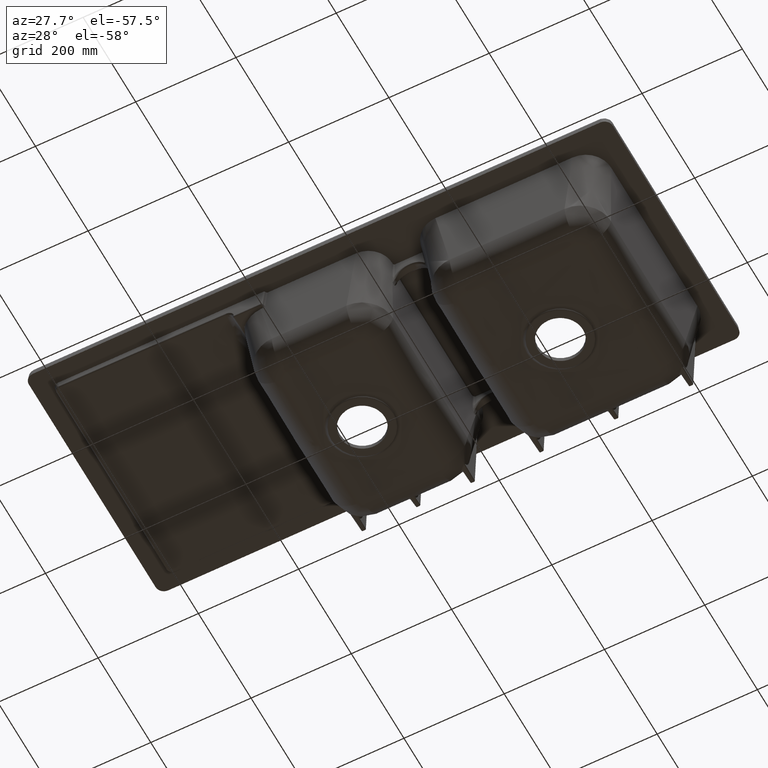
[diagram: clean part render]
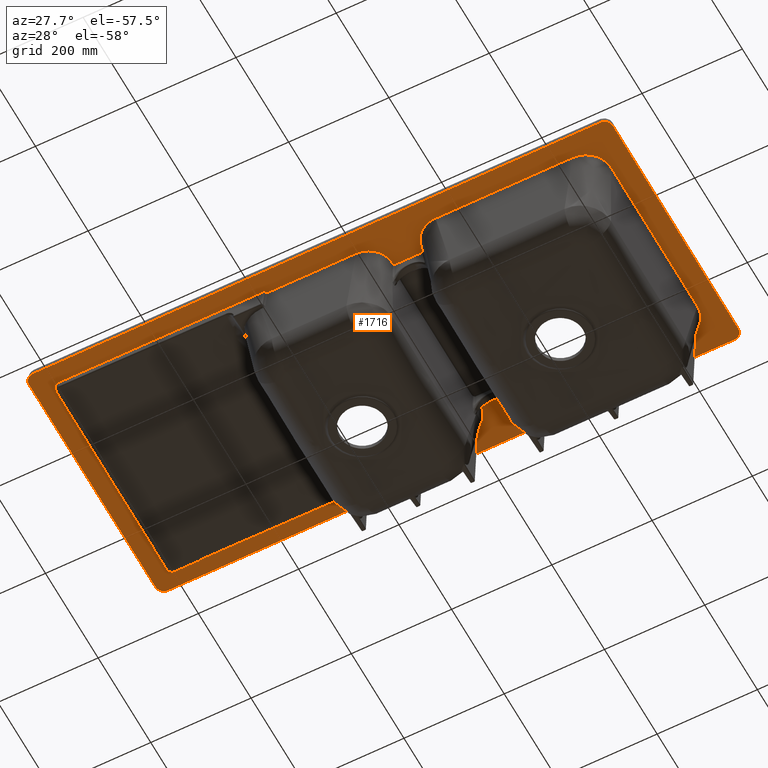
[diagram: same view with one face highlighted and labeled with its STEP entity id]
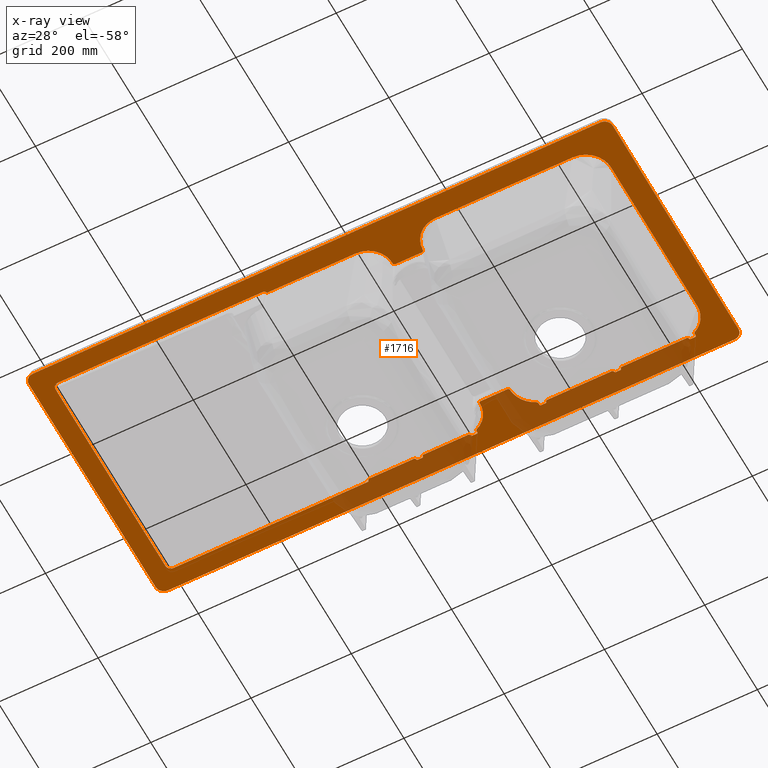
[diagram: x-ray of the same camera — body ghosted, the highlighted face saturated]
A machine part, auxiliary view. The second image highlights one B-rep face of the part: STEP entity #1716.
The next image is the same camera in x-ray: the body ghosted, the highlighted face saturated — about 20% of this face is hidden behind the body in this view.
In plain terms, the highlighted planar face has unit normal (-0, -0, -1).
Its self-contained STEP definition (entity closure, byte-faithful):
#42=FACE_BOUND('',#2870,.T.);
#43=FACE_BOUND('',#2871,.T.);
#53=ELLIPSE('',#8821,2.00135137765347,1.99993859998974);
#54=ELLIPSE('',#8824,2.00135241328788,1.99993860001756);
#55=ELLIPSE('',#8828,2.00135137769312,1.99993860002939);
#56=ELLIPSE('',#8831,2.00135241327104,1.99993860000073);
#57=ELLIPSE('',#8835,2.00135137766263,1.9999385999989);
#58=ELLIPSE('',#8838,2.00135241328802,1.9999386000177);
#59=ELLIPSE('',#8842,3.02277787342306,2.9999079);
#60=ELLIPSE('',#8846,2.00135137765346,1.99993859998972);
#61=ELLIPSE('',#8849,2.00135241327029,1.99993859999998);
#62=ELLIPSE('',#8852,3.01160466872445,2.9999079);
#63=ELLIPSE('',#8855,3.01160326128643,2.9999079);
#64=ELLIPSE('',#8858,2.00135137766313,1.99993859999939);
#65=ELLIPSE('',#8861,2.00135241328848,1.99993860001819);
#66=ELLIPSE('',#8864,3.01160466872445,2.9999079);
#67=ELLIPSE('',#8867,3.01160326128643,2.9999079);
#68=ELLIPSE('',#8870,2.00135137765335,1.99993859998961);
#70=ELLIPSE('',#8875,3.02277787342811,2.9999079);
#71=ELLIPSE('',#8885,3.04795770094347,2.9999079);
#72=ELLIPSE('',#8888,10.1599254830083,9.999693);
#73=ELLIPSE('',#8889,10.1599254830151,9.999693);
#634=LINE('',#41712,#820);
#635=LINE('',#41749,#821);
#637=LINE('',#41755,#823);
#638=LINE('',#41895,#824);
#640=LINE('',#41912,#826);
#642=LINE('',#41929,#828);
#643=LINE('',#42068,#829);
#645=LINE('',#42085,#831);
#646=LINE('',#42111,#832);
#647=LINE('',#42231,#833);
#650=LINE('',#42248,#836);
#651=LINE('',#42338,#837);
#652=LINE('',#42375,#838);
#654=LINE('',#42381,#840);
#658=LINE('',#42391,#844);
#660=LINE('',#42397,#846);
#662=LINE('',#42414,#848);
#664=LINE('',#42431,#850);
#668=LINE('',#42441,#854);
#670=LINE('',#42447,#856);
#672=LINE('',#42506,#858);
#674=LINE('',#42587,#860);
#676=LINE('',#42593,#862);
#677=LINE('',#43375,#864);
#689=LINE('',#44139,#876);
#690=LINE('',#44141,#877);
#691=LINE('',#44145,#878);
#692=LINE('',#44147,#879);
#693=LINE('',#44151,#880);
#694=LINE('',#44153,#881);
#820=VECTOR('',#9786,1.);
#821=VECTOR('',#9793,1.);
#823=VECTOR('',#9801,1.);
#824=VECTOR('',#9804,1.);
#826=VECTOR('',#9812,1.);
#828=VECTOR('',#9820,1.);
#829=VECTOR('',#9823,1.);
#831=VECTOR('',#9831,1.);
#832=VECTOR('',#9838,1.);
#833=VECTOR('',#9841,1.);
#836=VECTOR('',#9850,1.);
#837=VECTOR('',#9853,1.);
#838=VECTOR('',#9860,1.);
#840=VECTOR('',#9868,1.);
#844=VECTOR('',#9878,1.);
#846=VECTOR('',#9886,1.);
#848=VECTOR('',#9894,1.);
#850=VECTOR('',#9902,1.);
#854=VECTOR('',#9912,1.);
#856=VECTOR('',#9920,1.);
#858=VECTOR('',#9930,1.);
#860=VECTOR('',#9934,1.);
#862=VECTOR('',#9942,1.);
#864=VECTOR('',#9946,1.);
#876=VECTOR('',#9978,1.);
#877=VECTOR('',#9979,1.);
#878=VECTOR('',#9982,1.);
#879=VECTOR('',#9983,1.);
#880=VECTOR('',#9986,1.);
#881=VECTOR('',#9987,1.);
#1212=PLANE('',#8890);
#1716=ADVANCED_FACE('',(#42,#43),#1212,.T.);
#2870=EDGE_LOOP('',(#5246,#5247,#5248,#5249,#5250,#5251,#5252,#5253,#5254,
#5255,#5256,#5257,#5258,#5259,#5260,#5261,#5262,#5263,#5264,#5265,#5266,
#5267,#5268,#5269,#5270,#5271,#5272,#5273,#5274,#5275,#5276,#5277,#5278,
#5279,#5280,#5281,#5282,#5283,#5284,#5285,#5286,#5287,#5288,#5289,#5290,
#5291,#5292,#5293,#5294,#5295,#5296,#5297,#5298,#5299,#5300,#5301,#5302,
#5303,#5304,#5305,#5306,#5307,#5308,#5309,#5310,#5311,#5312,#5313,#5314,
#5315,#5316,#5317,#5318));
#2871=EDGE_LOOP('',(#5319,#5320,#5321,#5322,#5323,#5324,#5325,#5326,#5327,
#5328));
#5246=ORIENTED_EDGE('',*,*,#7415,.T.);
#5247=ORIENTED_EDGE('',*,*,#7417,.T.);
#5248=ORIENTED_EDGE('',*,*,#7419,.T.);
#5249=ORIENTED_EDGE('',*,*,#7421,.T.);
#5250=ORIENTED_EDGE('',*,*,#7423,.T.);
#5251=ORIENTED_EDGE('',*,*,#7425,.T.);
#5252=ORIENTED_EDGE('',*,*,#7426,.T.);
#5253=ORIENTED_EDGE('',*,*,#7429,.T.);
#5254=ORIENTED_EDGE('',*,*,#7430,.T.);
#5255=ORIENTED_EDGE('',*,*,#7433,.T.);
#5256=ORIENTED_EDGE('',*,*,#7435,.T.);
#5257=ORIENTED_EDGE('',*,*,#7437,.T.);
#5258=ORIENTED_EDGE('',*,*,#7438,.T.);
#5259=ORIENTED_EDGE('',*,*,#7441,.T.);
#5260=ORIENTED_EDGE('',*,*,#7442,.T.);
#5261=ORIENTED_EDGE('',*,*,#7445,.T.);
#5262=ORIENTED_EDGE('',*,*,#7447,.T.);
#5263=ORIENTED_EDGE('',*,*,#7448,.T.);
#5264=ORIENTED_EDGE('',*,*,#7451,.T.);
#5265=ORIENTED_EDGE('',*,*,#7452,.T.);
#5266=ORIENTED_EDGE('',*,*,#7455,.T.);
#5267=ORIENTED_EDGE('',*,*,#7456,.T.);
#5268=ORIENTED_EDGE('',*,*,#7459,.T.);
#5269=ORIENTED_EDGE('',*,*,#7461,.T.);
#5270=ORIENTED_EDGE('',*,*,#7462,.T.);
#5271=ORIENTED_EDGE('',*,*,#7465,.T.);
#5272=ORIENTED_EDGE('',*,*,#7466,.T.);
#5273=ORIENTED_EDGE('',*,*,#7469,.T.);
#5274=ORIENTED_EDGE('',*,*,#7470,.T.);
#5275=ORIENTED_EDGE('',*,*,#7473,.T.);
#5276=ORIENTED_EDGE('',*,*,#7474,.T.);
#5277=ORIENTED_EDGE('',*,*,#7477,.T.);
#5278=ORIENTED_EDGE('',*,*,#7478,.T.);
#5279=ORIENTED_EDGE('',*,*,#7481,.T.);
#5280=ORIENTED_EDGE('',*,*,#7482,.T.);
#5281=ORIENTED_EDGE('',*,*,#7484,.T.);
#5282=ORIENTED_EDGE('',*,*,#7487,.T.);
#5283=ORIENTED_EDGE('',*,*,#7489,.T.);
#5284=ORIENTED_EDGE('',*,*,#7491,.T.);
#5285=ORIENTED_EDGE('',*,*,#7492,.T.);
#5286=ORIENTED_EDGE('',*,*,#7495,.T.);
#5287=ORIENTED_EDGE('',*,*,#7497,.T.);
#5288=ORIENTED_EDGE('',*,*,#7499,.T.);
#5289=ORIENTED_EDGE('',*,*,#7500,.T.);
#5290=ORIENTED_EDGE('',*,*,#7502,.T.);
#5291=ORIENTED_EDGE('',*,*,#7505,.T.);
#5292=ORIENTED_EDGE('',*,*,#7506,.T.);
#5293=ORIENTED_EDGE('',*,*,#7508,.T.);
#5294=ORIENTED_EDGE('',*,*,#7511,.T.);
#5295=ORIENTED_EDGE('',*,*,#7512,.T.);
#5296=ORIENTED_EDGE('',*,*,#7515,.T.);
#5297=ORIENTED_EDGE('',*,*,#7516,.T.);
#5298=ORIENTED_EDGE('',*,*,#7518,.T.);
#5299=ORIENTED_EDGE('',*,*,#7521,.T.);
#5300=ORIENTED_EDGE('',*,*,#7522,.T.);
#5301=ORIENTED_EDGE('',*,*,#7524,.T.);
#5302=ORIENTED_EDGE('',*,*,#7527,.T.);
#5303=ORIENTED_EDGE('',*,*,#7561,.T.);
#5304=ORIENTED_EDGE('',*,*,#7597,.F.);
#5305=ORIENTED_EDGE('',*,*,#7598,.F.);
#5306=ORIENTED_EDGE('',*,*,#7599,.F.);
#5307=ORIENTED_EDGE('',*,*,#7600,.F.);
#5308=ORIENTED_EDGE('',*,*,#7601,.F.);
#5309=ORIENTED_EDGE('',*,*,#7602,.F.);
#5310=ORIENTED_EDGE('',*,*,#7603,.F.);
#5311=ORIENTED_EDGE('',*,*,#7604,.F.);
#5312=ORIENTED_EDGE('',*,*,#7593,.T.);
#5313=ORIENTED_EDGE('',*,*,#7530,.T.);
#5314=ORIENTED_EDGE('',*,*,#7533,.T.);
#5315=ORIENTED_EDGE('',*,*,#7534,.T.);
#5316=ORIENTED_EDGE('',*,*,#7537,.T.);
#5317=ORIENTED_EDGE('',*,*,#7538,.T.);
#5318=ORIENTED_EDGE('',*,*,#7540,.T.);
#5319=ORIENTED_EDGE('',*,*,#7542,.T.);
#5320=ORIENTED_EDGE('',*,*,#7545,.T.);
#5321=ORIENTED_EDGE('',*,*,#7546,.T.);
#5322=ORIENTED_EDGE('',*,*,#7549,.T.);
#5323=ORIENTED_EDGE('',*,*,#7551,.T.);
#5324=ORIENTED_EDGE('',*,*,#7553,.T.);
#5325=ORIENTED_EDGE('',*,*,#7555,.T.);
#5326=ORIENTED_EDGE('',*,*,#7557,.T.);
#5327=ORIENTED_EDGE('',*,*,#7558,.T.);
#5328=ORIENTED_EDGE('',*,*,#7560,.T.);
#6212=VERTEX_POINT('',#41401);
#6213=VERTEX_POINT('',#41406);
#6214=VERTEX_POINT('',#41429);
#6215=VERTEX_POINT('',#41478);
#6216=VERTEX_POINT('',#41511);
#6217=VERTEX_POINT('',#41558);
#6218=VERTEX_POINT('',#41603);
#6219=VERTEX_POINT('',#41650);
#6220=VERTEX_POINT('',#41695);
#6221=VERTEX_POINT('',#41713);
#6222=VERTEX_POINT('',#41735);
#6223=VERTEX_POINT('',#41748);
#6224=VERTEX_POINT('',#41752);
#6225=VERTEX_POINT('',#41756);
#6226=VERTEX_POINT('',#41777);
#6227=VERTEX_POINT('',#41800);
#6228=VERTEX_POINT('',#41845);
#6229=VERTEX_POINT('',#41876);
#6230=VERTEX_POINT('',#41896);
#6231=VERTEX_POINT('',#41909);
#6232=VERTEX_POINT('',#41913);
#6233=VERTEX_POINT('',#41926);
#6234=VERTEX_POINT('',#41930);
#6235=VERTEX_POINT('',#41952);
#6236=VERTEX_POINT('',#41979);
#6237=VERTEX_POINT('',#42004);
#6238=VERTEX_POINT('',#42049);
#6239=VERTEX_POINT('',#42069);
#6240=VERTEX_POINT('',#42082);
#6241=VERTEX_POINT('',#42086);
#6242=VERTEX_POINT('',#42108);
#6243=VERTEX_POINT('',#42112);
#6244=VERTEX_POINT('',#42148);
#6245=VERTEX_POINT('',#42173);
#6246=VERTEX_POINT('',#42212);
#6247=VERTEX_POINT('',#42232);
#6248=VERTEX_POINT('',#42236);
#6249=VERTEX_POINT('',#42247);
#6250=VERTEX_POINT('',#42256);
#6251=VERTEX_POINT('',#42315);
#6252=VERTEX_POINT('',#42339);
#6253=VERTEX_POINT('',#42361);
#6254=VERTEX_POINT('',#42374);
#6255=VERTEX_POINT('',#42378);
#6256=VERTEX_POINT('',#42382);
#6257=VERTEX_POINT('',#42386);
#6258=VERTEX_POINT('',#42390);
#6259=VERTEX_POINT('',#42394);
#6260=VERTEX_POINT('',#42398);
#6261=VERTEX_POINT('',#42411);
#6262=VERTEX_POINT('',#42415);
#6263=VERTEX_POINT('',#42428);
#6264=VERTEX_POINT('',#42432);
#6265=VERTEX_POINT('',#42436);
#6266=VERTEX_POINT('',#42440);
#6267=VERTEX_POINT('',#42444);
#6268=VERTEX_POINT('',#42448);
#6269=VERTEX_POINT('',#42461);
#6270=VERTEX_POINT('',#42468);
#6271=VERTEX_POINT('',#42470);
#6272=VERTEX_POINT('',#42505);
#6273=VERTEX_POINT('',#42520);
#6274=VERTEX_POINT('',#42586);
#6275=VERTEX_POINT('',#42590);
#6276=VERTEX_POINT('',#42599);
#6277=VERTEX_POINT('',#42627);
#6278=VERTEX_POINT('',#43100);
#6279=VERTEX_POINT('',#43123);
#6280=VERTEX_POINT('',#43140);
#6281=VERTEX_POINT('',#43189);
#6282=VERTEX_POINT('',#43244);
#6283=VERTEX_POINT('',#43281);
#6284=VERTEX_POINT('',#43299);
#6285=VERTEX_POINT('',#43330);
#6286=VERTEX_POINT('',#43376);
#6304=VERTEX_POINT('',#44078);
#6307=VERTEX_POINT('',#44140);
#6308=VERTEX_POINT('',#44142);
#6309=VERTEX_POINT('',#44144);
#6310=VERTEX_POINT('',#44146);
#6311=VERTEX_POINT('',#44148);
#6312=VERTEX_POINT('',#44150);
#6313=VERTEX_POINT('',#44152);
#7415=EDGE_CURVE('',#6212,#6213,#8293,.T.);
#7417=EDGE_CURVE('',#6213,#6214,#8295,.T.);
#7419=EDGE_CURVE('',#6214,#6215,#8296,.T.);
#7421=EDGE_CURVE('',#6215,#6216,#8298,.T.);
#7423=EDGE_CURVE('',#6216,#6217,#8300,.T.);
#7425=EDGE_CURVE('',#6217,#6218,#8301,.T.);
#7426=EDGE_CURVE('',#6218,#6219,#8302,.T.);
#7429=EDGE_CURVE('',#6219,#6220,#8304,.T.);
#7430=EDGE_CURVE('',#6220,#6221,#634,.T.);
#7433=EDGE_CURVE('',#6221,#6222,#53,.T.);
#7435=EDGE_CURVE('',#6222,#6223,#635,.T.);
#7437=EDGE_CURVE('',#6223,#6224,#54,.T.);
#7438=EDGE_CURVE('',#6224,#6225,#637,.T.);
#7441=EDGE_CURVE('',#6225,#6226,#8310,.T.);
#7442=EDGE_CURVE('',#6226,#6227,#8311,.T.);
#7445=EDGE_CURVE('',#6227,#6228,#8314,.T.);
#7447=EDGE_CURVE('',#6228,#6229,#8316,.T.);
#7448=EDGE_CURVE('',#6229,#6230,#638,.T.);
#7451=EDGE_CURVE('',#6230,#6231,#55,.T.);
#7452=EDGE_CURVE('',#6231,#6232,#640,.T.);
#7455=EDGE_CURVE('',#6232,#6233,#56,.T.);
#7456=EDGE_CURVE('',#6233,#6234,#642,.T.);
#7459=EDGE_CURVE('',#6234,#6235,#8321,.T.);
#7461=EDGE_CURVE('',#6235,#6236,#8322,.T.);
#7462=EDGE_CURVE('',#6236,#6237,#8323,.T.);
#7465=EDGE_CURVE('',#6237,#6238,#8325,.T.);
#7466=EDGE_CURVE('',#6238,#6239,#643,.T.);
#7469=EDGE_CURVE('',#6239,#6240,#57,.T.);
#7470=EDGE_CURVE('',#6240,#6241,#645,.T.);
#7473=EDGE_CURVE('',#6241,#6242,#58,.T.);
#7474=EDGE_CURVE('',#6242,#6243,#646,.T.);
#7477=EDGE_CURVE('',#6243,#6244,#8331,.T.);
#7478=EDGE_CURVE('',#6244,#6245,#8332,.T.);
#7481=EDGE_CURVE('',#6245,#6246,#8334,.T.);
#7482=EDGE_CURVE('',#6246,#6247,#647,.T.);
#7484=EDGE_CURVE('',#6247,#6248,#59,.T.);
#7487=EDGE_CURVE('',#6248,#6249,#650,.T.);
#7489=EDGE_CURVE('',#6249,#6250,#8336,.T.);
#7491=EDGE_CURVE('',#6250,#6251,#8338,.T.);
#7492=EDGE_CURVE('',#6251,#6252,#651,.T.);
#7495=EDGE_CURVE('',#6252,#6253,#60,.T.);
#7497=EDGE_CURVE('',#6253,#6254,#652,.T.);
#7499=EDGE_CURVE('',#6254,#6255,#61,.T.);
#7500=EDGE_CURVE('',#6255,#6256,#654,.T.);
#7502=EDGE_CURVE('',#6256,#6257,#62,.T.);
#7505=EDGE_CURVE('',#6257,#6258,#658,.T.);
#7506=EDGE_CURVE('',#6258,#6259,#63,.T.);
#7508=EDGE_CURVE('',#6259,#6260,#660,.T.);
#7511=EDGE_CURVE('',#6260,#6261,#64,.T.);
#7512=EDGE_CURVE('',#6261,#6262,#662,.T.);
#7515=EDGE_CURVE('',#6262,#6263,#65,.T.);
#7516=EDGE_CURVE('',#6263,#6264,#664,.T.);
#7518=EDGE_CURVE('',#6264,#6265,#66,.T.);
#7521=EDGE_CURVE('',#6265,#6266,#668,.T.);
#7522=EDGE_CURVE('',#6266,#6267,#67,.T.);
#7524=EDGE_CURVE('',#6267,#6268,#670,.T.);
#7527=EDGE_CURVE('',#6268,#6269,#68,.T.);
#7530=EDGE_CURVE('',#6270,#6271,#8346,.T.);
#7533=EDGE_CURVE('',#6271,#6272,#672,.T.);
#7534=EDGE_CURVE('',#6272,#6273,#8349,.T.);
#7537=EDGE_CURVE('',#6273,#6274,#674,.T.);
#7538=EDGE_CURVE('',#6274,#6275,#70,.T.);
#7540=EDGE_CURVE('',#6275,#6212,#676,.T.);
#7542=EDGE_CURVE('',#6277,#6276,#8352,.T.);
#7545=EDGE_CURVE('',#6276,#6278,#8354,.T.);
#7546=EDGE_CURVE('',#6278,#6279,#8355,.T.);
#7549=EDGE_CURVE('',#6279,#6280,#8358,.T.);
#7551=EDGE_CURVE('',#6280,#6281,#8360,.T.);
#7553=EDGE_CURVE('',#6281,#6282,#8362,.T.);
#7555=EDGE_CURVE('',#6282,#6283,#8363,.T.);
#7557=EDGE_CURVE('',#6283,#6284,#8366,.T.);
#7558=EDGE_CURVE('',#6284,#6285,#8367,.T.);
#7560=EDGE_CURVE('',#6285,#6277,#8368,.T.);
#7561=EDGE_CURVE('',#6269,#6286,#677,.T.);
#7593=EDGE_CURVE('',#6304,#6270,#71,.T.);
#7597=EDGE_CURVE('',#6307,#6286,#689,.T.);
#7598=EDGE_CURVE('',#6308,#6307,#690,.T.);
#7599=EDGE_CURVE('',#6309,#6308,#72,.T.);
#7600=EDGE_CURVE('',#6310,#6309,#691,.T.);
#7601=EDGE_CURVE('',#6311,#6310,#692,.T.);
#7602=EDGE_CURVE('',#6312,#6311,#73,.T.);
#7603=EDGE_CURVE('',#6313,#6312,#693,.T.);
#7604=EDGE_CURVE('',#6304,#6313,#694,.T.);
#8293=B_SPLINE_CURVE_WITH_KNOTS('',3,(#41407,#41408,#41409,#41410,#41411,
#41412),.UNSPECIFIED.,.F.,.F.,(4,2,4),(0.,0.5,1.),.UNSPECIFIED.);
#8295=B_SPLINE_CURVE_WITH_KNOTS('',3,(#41430,#41431,#41432,#41433,#41434,
#41435,#41436,#41437,#41438,#41439),.UNSPECIFIED.,.F.,.F.,(4,2,2,2,4),(0.,
0.25,0.5,0.75,1.),.UNSPECIFIED.);
#8296=B_SPLINE_CURVE_WITH_KNOTS('',3,(#41479,#41480,#41481,#41482),
 .UNSPECIFIED.,.F.,.F.,(4,4),(0.,1.),.UNSPECIFIED.);
#8298=B_SPLINE_CURVE_WITH_KNOTS('',3,(#41512,#41513,#41514,#41515,#41516,
#41517,#41518,#41519,#41520,#41521),.UNSPECIFIED.,.F.,.F.,(4,2,2,2,4),(0.,
0.25,0.5,0.75,1.),.UNSPECIFIED.);
#8300=B_SPLINE_CURVE_WITH_KNOTS('',3,(#41559,#41560,#41561,#41562),
 .UNSPECIFIED.,.F.,.F.,(4,4),(0.,1.),.UNSPECIFIED.);
#8301=B_SPLINE_CURVE_WITH_KNOTS('',3,(#41604,#41605,#41606,#41607),
 .UNSPECIFIED.,.F.,.F.,(4,4),(0.,1.),.UNSPECIFIED.);
#8302=B_SPLINE_CURVE_WITH_KNOTS('',3,(#41640,#41641,#41642,#41643,#41644,
#41645,#41646,#41647,#41648,#41649),.UNSPECIFIED.,.F.,.F.,(4,2,2,2,4),(0.,
0.25,0.5,0.75,1.),.UNSPECIFIED.);
#8304=B_SPLINE_CURVE_WITH_KNOTS('',3,(#41696,#41697,#41698,#41699),
 .UNSPECIFIED.,.F.,.F.,(4,4),(0.,1.),.UNSPECIFIED.);
#8310=B_SPLINE_CURVE_WITH_KNOTS('',3,(#41778,#41779,#41780,#41781,#41782,
#41783),.UNSPECIFIED.,.F.,.F.,(4,2,4),(0.,0.5,1.),.UNSPECIFIED.);
#8311=B_SPLINE_CURVE_WITH_KNOTS('',3,(#41796,#41797,#41798,#41799),
 .UNSPECIFIED.,.F.,.F.,(4,4),(0.,1.),.UNSPECIFIED.);
#8314=B_SPLINE_CURVE_WITH_KNOTS('',3,(#41846,#41847,#41848,#41849),
 .UNSPECIFIED.,.F.,.F.,(4,4),(0.,1.),.UNSPECIFIED.);
#8316=B_SPLINE_CURVE_WITH_KNOTS('',3,(#41877,#41878,#41879,#41880,#41881,
#41882),.UNSPECIFIED.,.F.,.F.,(4,2,4),(0.,0.5,1.),.UNSPECIFIED.);
#8321=B_SPLINE_CURVE_WITH_KNOTS('',3,(#41953,#41954,#41955,#41956,#41957,
#41958),.UNSPECIFIED.,.F.,.F.,(4,2,4),(0.,0.5,1.),.UNSPECIFIED.);
#8322=B_SPLINE_CURVE_WITH_KNOTS('',3,(#41980,#41981,#41982,#41983),
 .UNSPECIFIED.,.F.,.F.,(4,4),(0.,1.),.UNSPECIFIED.);
#8323=B_SPLINE_CURVE_WITH_KNOTS('',3,(#42000,#42001,#42002,#42003),
 .UNSPECIFIED.,.F.,.F.,(4,4),(0.,1.),.UNSPECIFIED.);
#8325=B_SPLINE_CURVE_WITH_KNOTS('',3,(#42050,#42051,#42052,#42053,#42054,
#42055),.UNSPECIFIED.,.F.,.F.,(4,2,4),(0.,0.5,1.),.UNSPECIFIED.);
#8331=B_SPLINE_CURVE_WITH_KNOTS('',3,(#42149,#42150,#42151,#42152),
 .UNSPECIFIED.,.F.,.F.,(4,4),(0.,1.),.UNSPECIFIED.);
#8332=B_SPLINE_CURVE_WITH_KNOTS('',3,(#42165,#42166,#42167,#42168,#42169,
#42170,#42171,#42172),.UNSPECIFIED.,.F.,.F.,(4,2,2,4),(0.,0.5,0.75,1.),
 .UNSPECIFIED.);
#8334=B_SPLINE_CURVE_WITH_KNOTS('',3,(#42213,#42214,#42215,#42216,#42217,
#42218),.UNSPECIFIED.,.F.,.F.,(4,2,4),(0.,0.5,1.),.UNSPECIFIED.);
#8336=B_SPLINE_CURVE_WITH_KNOTS('',3,(#42257,#42258,#42259,#42260,#42261,
#42262,#42263,#42264,#42265,#42266),.UNSPECIFIED.,.F.,.F.,(4,2,2,2,4),(0.,
0.25,0.5,0.75,1.),.UNSPECIFIED.);
#8338=B_SPLINE_CURVE_WITH_KNOTS('',3,(#42316,#42317,#42318,#42319),
 .UNSPECIFIED.,.F.,.F.,(4,4),(0.,1.),.UNSPECIFIED.);
#8346=B_SPLINE_CURVE_WITH_KNOTS('',3,(#42471,#42472,#42473,#42474,#42475,
#42476),.UNSPECIFIED.,.F.,.F.,(4,2,4),(0.,0.5,1.),.UNSPECIFIED.);
#8349=B_SPLINE_CURVE_WITH_KNOTS('',3,(#42508,#42509,#42510,#42511,#42512,
#42513,#42514,#42515,#42516,#42517,#42518,#42519),.UNSPECIFIED.,.F.,.F.,
(4,2,2,2,2,4),(0.,0.25,0.375,0.5,0.75,1.),.UNSPECIFIED.);
#8352=B_SPLINE_CURVE_WITH_KNOTS('',3,(#42600,#42601,#42602,#42603,#42604,
#42605,#42606,#42607,#42608,#42609,#42610,#42611,#42612,#42613,#42614,#42615,
#42616,#42617,#42618,#42619,#42620,#42621,#42622,#42623,#42624,#42625,#42626),
 .UNSPECIFIED.,.F.,.F.,(4,2,2,1,1,1,1,2,2,1,1,1,2,2,1,1,1,1,4),(0.,0.500000000000019,
0.507812500000019,0.515625000000019,0.53125000000002,0.562500000000021,
0.625000000000023,0.750000000000027,0.781250000000028,0.812500000000029,
0.875000000000031,0.878906250000031,0.879882812500031,0.88085937500003,
0.88281250000003,0.890625000000028,0.906250000000024,0.937500000000016,
1.),.UNSPECIFIED.);
#8354=B_SPLINE_CURVE_WITH_KNOTS('',3,(#43101,#43102,#43103,#43104,#43105,
#43106),.UNSPECIFIED.,.F.,.F.,(4,2,4),(0.,0.5,1.),.UNSPECIFIED.);
#8355=B_SPLINE_CURVE_WITH_KNOTS('',3,(#43119,#43120,#43121,#43122),
 .UNSPECIFIED.,.F.,.F.,(4,4),(0.,1.),.UNSPECIFIED.);
#8358=B_SPLINE_CURVE_WITH_KNOTS('',3,(#43141,#43142,#43143,#43144),
 .UNSPECIFIED.,.F.,.F.,(4,4),(0.,1.),.UNSPECIFIED.);
#8360=B_SPLINE_CURVE_WITH_KNOTS('',3,(#43190,#43191,#43192,#43193,#43194,
#43195),.UNSPECIFIED.,.F.,.F.,(4,2,4),(0.,0.499999999999998,1.),
 .UNSPECIFIED.);
#8362=B_SPLINE_CURVE_WITH_KNOTS('',3,(#43245,#43246,#43247,#43248),
 .UNSPECIFIED.,.F.,.F.,(4,4),(0.,1.),.UNSPECIFIED.);
#8363=B_SPLINE_CURVE_WITH_KNOTS('',3,(#43282,#43283,#43284,#43285),
 .UNSPECIFIED.,.F.,.F.,(4,4),(0.,1.),.UNSPECIFIED.);
#8366=B_SPLINE_CURVE_WITH_KNOTS('',3,(#43300,#43301,#43302,#43303,#43304,
#43305,#43306,#43307,#43308,#43309,#43310,#43311,#43312,#43313),
 .UNSPECIFIED.,.F.,.F.,(4,2,2,2,2,2,4),(0.,0.125,0.25,0.5,0.75,0.875,1.),
 .UNSPECIFIED.);
#8367=B_SPLINE_CURVE_WITH_KNOTS('',3,(#43326,#43327,#43328,#43329),
 .UNSPECIFIED.,.F.,.F.,(4,4),(0.,1.),.UNSPECIFIED.);
#8368=B_SPLINE_CURVE_WITH_KNOTS('',3,(#43353,#43354,#43355,#43356,#43357,
#43358,#43359,#43360,#43361,#43362),.UNSPECIFIED.,.F.,.F.,(4,2,2,2,4),(0.,
0.125000000000002,0.250000000000003,0.500000000000004,1.),.UNSPECIFIED.);
#8821=AXIS2_PLACEMENT_3D('',#41736,#9789,#9790);
#8824=AXIS2_PLACEMENT_3D('',#41753,#9797,#9798);
#8828=AXIS2_PLACEMENT_3D('',#41910,#9808,#9809);
#8831=AXIS2_PLACEMENT_3D('',#41927,#9816,#9817);
#8835=AXIS2_PLACEMENT_3D('',#42083,#9827,#9828);
#8838=AXIS2_PLACEMENT_3D('',#42109,#9834,#9835);
#8842=AXIS2_PLACEMENT_3D('',#42235,#9845,#9846);
#8846=AXIS2_PLACEMENT_3D('',#42362,#9856,#9857);
#8849=AXIS2_PLACEMENT_3D('',#42379,#9864,#9865);
#8852=AXIS2_PLACEMENT_3D('',#42385,#9872,#9873);
#8855=AXIS2_PLACEMENT_3D('',#42393,#9881,#9882);
#8858=AXIS2_PLACEMENT_3D('',#42412,#9890,#9891);
#8861=AXIS2_PLACEMENT_3D('',#42429,#9898,#9899);
#8864=AXIS2_PLACEMENT_3D('',#42435,#9906,#9907);
#8867=AXIS2_PLACEMENT_3D('',#42443,#9915,#9916);
#8870=AXIS2_PLACEMENT_3D('',#42462,#9924,#9925);
#8875=AXIS2_PLACEMENT_3D('',#42589,#9937,#9938);
#8885=AXIS2_PLACEMENT_3D('',#44079,#9972,#9973);
#8888=AXIS2_PLACEMENT_3D('',#44143,#9980,#9981);
#8889=AXIS2_PLACEMENT_3D('',#44149,#9984,#9985);
#8890=AXIS2_PLACEMENT_3D('',#44154,#9988,#9989);
#9786=DIRECTION('',(-0.0256777631137145,0.999670271880308,4.76504013127324E-7));
#9789=DIRECTION('',(1.85574400306932E-5,9.53920512086683E-12,0.999999999827811));
#9790=DIRECTION('',(-0.370360320524415,-0.92888817030567,6.87294829991838E-6));
#9793=DIRECTION('',(-0.999999999827601,6.48040085668494E-7,1.85574400306831E-5));
#9797=DIRECTION('',(1.85574400306932E-5,9.53920512171386E-12,0.999999999827811));
#9798=DIRECTION('',(0.371211686380064,-0.928548266837764,-6.88872975226431E-6));
#9801=DIRECTION('',(-0.025677777246292,-0.999670271517295,4.76523347511431E-7));
#9804=DIRECTION('',(-0.0256777631137268,0.999670271880308,4.76504013127606E-7));
#9808=DIRECTION('',(1.85574400306932E-5,9.53920512171386E-12,0.999999999827811));
#9809=DIRECTION('',(-0.37036032052954,-0.928888170303626,6.87294830001349E-6));
#9812=DIRECTION('',(-0.999999999827601,6.4804008566844E-7,1.85574400306831E-5));
#9816=DIRECTION('',(1.85574400306932E-5,9.53920512086683E-12,0.999999999827811));
#9817=DIRECTION('',(-0.371211686385919,0.928548266835423,6.88872975237297E-6));
#9820=DIRECTION('',(-0.0256777772462797,-0.999670271517295,4.76523347511152E-7));
#9823=DIRECTION('',(-0.0256777631137145,0.999670271880308,4.76504013127324E-7));
#9827=DIRECTION('',(1.85574400306932E-5,9.53920512086683E-12,0.999999999827811));
#9828=DIRECTION('',(0.370360320530262,0.928888170303338,-6.8729483000269E-6));
#9831=DIRECTION('',(-0.999999999827601,6.48040085668494E-7,1.85574400306831E-5));
#9834=DIRECTION('',(1.85574400306932E-5,9.53920512171386E-12,0.999999999827811));
#9835=DIRECTION('',(0.371211686380055,-0.928548266837767,-6.88872975226414E-6));
#9838=DIRECTION('',(-0.025677777246292,-0.999670271517295,4.76523347511431E-7));
#9841=DIRECTION('',(-0.999999999826458,1.64494896999955E-6,1.85574400306524E-5));
#9845=DIRECTION('',(-1.85574400306932E-5,-9.53920511917276E-12,-0.999999999827811));
#9846=DIRECTION('',(0.707031783574768,0.707181770723009,-1.3120706671694E-5));
#9850=DIRECTION('',(-8.3436428304777E-13,1.,-9.53918963884423E-12));
#9853=DIRECTION('',(-0.0256777631137145,0.999670271880308,4.76504013127324E-7));
#9856=DIRECTION('',(1.85574400306932E-5,9.53920512171386E-12,0.999999999827811));
#9857=DIRECTION('',(-0.370360320524411,-0.928888170305672,6.8729482999183E-6));
#9860=DIRECTION('',(-0.999999999827601,6.48040085668494E-7,1.85574400306831E-5));
#9864=DIRECTION('',(1.85574400306932E-5,9.53920512171386E-12,0.999999999827811));
#9865=DIRECTION('',(-0.371211686385909,0.928548266835427,6.88872975237279E-6));
#9868=DIRECTION('',(-0.025677777246292,-0.999670271517295,4.76523347511431E-7));
#9872=DIRECTION('',(-1.85574400306932E-5,-9.53920512044331E-12,-0.999999999827811));
#9873=DIRECTION('',(-0.142661285944602,0.989771568335656,2.64741881744037E-6));
#9878=DIRECTION('',(-0.999999999826493,1.62356562602473E-6,1.85574400306533E-5));
#9881=DIRECTION('',(-1.85574400306932E-5,-9.53920512044331E-12,-0.999999999827811));
#9882=DIRECTION('',(-0.142249908772623,-0.989830775156649,2.63980359407288E-6));
#9886=DIRECTION('',(-0.0256777631137268,0.999670271880308,4.76504013127606E-7));
#9890=DIRECTION('',(1.85574400306932E-5,9.53920512086683E-12,0.999999999827811));
#9891=DIRECTION('',(0.370360320530292,0.928888170303327,-6.87294830002744E-6));
#9894=DIRECTION('',(-0.999999999827601,6.4804008566844E-7,1.85574400306831E-5));
#9898=DIRECTION('',(1.85574400306932E-5,9.5392051225609E-12,0.999999999827811));
#9899=DIRECTION('',(0.371211686384993,-0.928548266835793,-6.88872975235579E-6));
#9902=DIRECTION('',(-0.0256777772462797,-0.999670271517295,4.76523347511152E-7));
#9906=DIRECTION('',(-1.85574400306932E-5,-9.5392051200198E-12,-0.999999999827811));
#9907=DIRECTION('',(-0.142661285944633,0.989771568335651,2.64741881744094E-6));
#9912=DIRECTION('',(-0.999999999826493,1.62356562602473E-6,1.85574400306533E-5));
#9915=DIRECTION('',(-1.85574400306932E-5,-9.53920512044331E-12,-0.999999999827811));
#9916=DIRECTION('',(-0.14224990877263,-0.989830775156648,2.639803594073E-6));
#9920=DIRECTION('',(-0.0256777631137145,0.999670271880308,4.76504013127324E-7));
#9924=DIRECTION('',(1.85574400306932E-5,9.53920512086683E-12,0.999999999827811));
#9925=DIRECTION('',(-0.37036032052442,-0.928888170305668,6.87294829991848E-6));
#9930=DIRECTION('',(0.999999999826493,1.62356562602744E-6,-1.85574400306842E-5));
#9934=DIRECTION('',(-8.34777621526798E-13,1.,-9.53918963117372E-12));
#9937=DIRECTION('',(-1.85574400306932E-5,-9.5392051225609E-12,-0.999999999827811));
#9938=DIRECTION('',(-0.707031783497661,0.707181770800099,1.31206931783592E-5));
#9942=DIRECTION('',(0.999999999826458,1.6449489700023E-6,-1.85574400306838E-5));
#9946=DIRECTION('',(-0.999999999827601,6.48040085668494E-7,1.85574400306831E-5));
#9972=DIRECTION('',(1.85574400306932E-5,9.5392051200198E-12,0.999999999827811));
#9973=DIRECTION('',(0.98093589284103,-0.194331607837732,-1.82036571547173E-5));
#9978=DIRECTION('',(0.999999999827601,-6.48040085748848E-7,-1.85574400306831E-5));
#9979=DIRECTION('',(0.999999999827601,-6.48040085748848E-7,-1.85574400306831E-5));
#9980=DIRECTION('',(-1.85574400306932E-5,-9.53920512044331E-12,-0.999999999827811));
#9981=DIRECTION('',(0.980943690978303,-0.194292240705811,-1.82038018685577E-5));
#9982=DIRECTION('',(0.000990600377381641,0.999999509355326,-1.83925463012496E-8));
#9983=DIRECTION('',(-0.000990600374017649,0.999999509355329,1.83734678379552E-8));
#9984=DIRECTION('',(-1.85574400306932E-5,-9.53920512086683E-12,-0.999999999827811));
#9985=DIRECTION('',(0.980943690958072,0.194292240807952,-1.82038055749693E-5));
#9986=DIRECTION('',(-0.999999999827601,-6.4804008574928E-7,1.85574400306955E-5));
#9987=DIRECTION('',(-0.999999999827601,-6.4804008574928E-7,1.85574400306955E-5));
#9988=DIRECTION('',(-1.85574400306932E-5,-9.53920512086683E-12,-0.999999999827811));
#9989=DIRECTION('',(-0.999999999827811,0.,1.85574400306948E-5));
#41401=CARTESIAN_POINT('',(36.6789741335149,-161.99943709428,-29.9818173983976));
#41406=CARTESIAN_POINT('',(39.6666467350895,-164.918108603452,-29.9819060035729));
#41407=CARTESIAN_POINT('',(36.6789741876483,-161.999437094072,-29.9818174007838));
#41408=CARTESIAN_POINT('',(37.4625189529015,-161.999435839222,-29.9818319413688));
#41409=CARTESIAN_POINT('',(38.2122229241217,-162.304720561113,-29.9818458539524));
#41410=CARTESIAN_POINT('',(39.3269428170134,-163.394307127344,-29.9818665402896));
#41411=CARTESIAN_POINT('',(39.6486557333799,-164.136604397972,-29.9818725104506));
#41412=CARTESIAN_POINT('',(39.6666757657766,-164.91811076733,-29.9818728448489));
#41429=CARTESIAN_POINT('',(90.2643029888959,-214.339332748114,-29.9828214126373));
#41430=CARTESIAN_POINT('',(39.6665766457014,-164.918113052848,-29.9818728430094));
#41431=CARTESIAN_POINT('',(39.8172570603125,-171.494553810042,-29.9818756391895));
#41432=CARTESIAN_POINT('',(41.2284789890706,-177.970449631059,-29.981901827794));
#41433=CARTESIAN_POINT('',(46.428753239965,-190.002437581837,-29.9819983314568));
#41434=CARTESIAN_POINT('',(50.1581405390018,-195.428313263493,-29.9820675392862));
#41435=CARTESIAN_POINT('',(59.5444051926669,-204.589138916305,-29.9822417242423));
#41436=CARTESIAN_POINT('',(65.0702231025707,-208.186831370045,-29.9823442692425));
#41437=CARTESIAN_POINT('',(77.2149105186699,-213.090512526451,-29.9825696435041));
#41438=CARTESIAN_POINT('',(83.707719718246,-214.339341037039,-29.9826901334096));
#41439=CARTESIAN_POINT('',(90.2640524712012,-214.339333755808,-29.9828118021615));
#41478=CARTESIAN_POINT('',(363.721400735266,-214.338906599204,-29.9878989836473));
#41479=CARTESIAN_POINT('',(90.2640524711998,-214.33933288775,-29.9828118021615));
#41480=CARTESIAN_POINT('',(181.416502215545,-214.339190955206,-29.9845033582816));
#41481=CARTESIAN_POINT('',(272.568951959891,-214.339049022662,-29.9861949144017));
#41482=CARTESIAN_POINT('',(363.721401704237,-214.338907090118,-29.9878864705217));
#41511=CARTESIAN_POINT('',(414.332579487279,-163.726711470283,-29.9888318783205));
#41512=CARTESIAN_POINT('',(363.721401704238,-214.33890783953,-29.9878864705217));
#41513=CARTESIAN_POINT('',(370.414519577564,-214.338894897289,-29.9880106776553));
#41514=CARTESIAN_POINT('',(376.998818221136,-213.044983457188,-29.9881328653949));
#41515=CARTESIAN_POINT('',(389.322880354616,-207.97205883745,-29.9883615684873));
#41516=CARTESIAN_POINT('',(394.87623353006,-204.275227057029,-29.9884646245411));
#41517=CARTESIAN_POINT('',(404.295225838395,-194.84838555966,-29.988639417016));
#41518=CARTESIAN_POINT('',(407.995201090861,-189.273883915898,-29.988708079138));
#41519=CARTESIAN_POINT('',(413.045982640862,-176.970895162532,-29.9888018088311));
#41520=CARTESIAN_POINT('',(414.332656418055,-170.38232539424,-29.9888256862654));
#41521=CARTESIAN_POINT('',(414.332578450702,-163.726461681121,-29.988825684882));
#41558=CARTESIAN_POINT('',(414.332172387825,7.64522359940026E-10,-29.9888258037889));
#41559=CARTESIAN_POINT('',(414.332589333932,-163.726461680994,-29.988825685084));
#41560=CARTESIAN_POINT('',(414.332450605545,-109.150974453997,-29.9888256830302));
#41561=CARTESIAN_POINT('',(414.332311877158,-54.575487227,-29.9888256809763));
#41562=CARTESIAN_POINT('',(414.332173148771,-3.21964677141295E-12,-29.9888256789225));
#41603=CARTESIAN_POINT('',(414.33258271029,163.726961651381,-29.9888264755718));
#41604=CARTESIAN_POINT('',(414.332173149611,-3.21964677141295E-12,-29.9888256789225));
#41605=CARTESIAN_POINT('',(414.332311877834,54.5756536492237,-29.9888256820176));
#41606=CARTESIAN_POINT('',(414.332450606058,109.151307298451,-29.9888256851126));
#41607=CARTESIAN_POINT('',(414.332589334281,163.726960947677,-29.9888256882077));
#41640=CARTESIAN_POINT('',(414.332578456208,163.726960947806,-29.9888256880058));
#41641=CARTESIAN_POINT('',(414.332635311356,168.580533007832,-29.9888256891072));
#41642=CARTESIAN_POINT('',(413.670563480447,173.295431210396,-29.9888134027939));
#41643=CARTESIAN_POINT('',(410.97064432554,182.625918253864,-29.988763299295));
#41644=CARTESIAN_POINT('',(409.008437675261,186.97742833655,-29.9887268858043));
#41645=CARTESIAN_POINT('',(403.787850477964,195.165404240771,-29.9886300051486));
#41646=CARTESIAN_POINT('',(400.673039314619,198.783825103379,-29.9885722022617));
#41647=CARTESIAN_POINT('',(393.324442993351,205.164998356971,-29.988435831187));
#41648=CARTESIAN_POINT('',(389.273098185824,207.766670968802,-29.9883606486235));
#41649=CARTESIAN_POINT('',(384.844706731403,209.779429565667,-29.9882784690338));
#41650=CARTESIAN_POINT('',(384.84471382727,209.779372532672,-29.9882815738041));
#41695=CARTESIAN_POINT('',(383.080270216541,212.461672612517,-29.9882457075766));
#41696=CARTESIAN_POINT('',(384.844683856101,209.779379269584,-29.9882784686093));
#41697=CARTESIAN_POINT('',(383.791464747507,210.258396802603,-29.9882589235635));
#41698=CARTESIAN_POINT('',(383.110024386593,211.303315952103,-29.9882462777848));
#41699=CARTESIAN_POINT('',(383.080270222861,212.461672360531,-29.9882457256347));
#41712=CARTESIAN_POINT('',(409.802158612045,-827.857817815282,-29.9887416055523));
#41713=CARTESIAN_POINT('',(382.956037636526,217.298216052599,-29.9882434202421));
#41735=CARTESIAN_POINT('',(380.957538454269,219.246990798487,-29.9882063332317));
#41736=CARTESIAN_POINT('',(380.95656535083,217.245833147967,-29.9882063151545));
#41748=CARTESIAN_POINT('',(371.642495281231,219.246996835009,-29.9880334698768));
#41749=CARTESIAN_POINT('',(293.118267862952,219.247047721856,-29.9865762612353));
#41752=CARTESIAN_POINT('',(369.643995064844,217.298224679337,-29.9879963828103));
#41753=CARTESIAN_POINT('',(371.643468385173,217.245839183228,-29.9880334879161));
#41755=CARTESIAN_POINT('',(342.688166757565,-832.128286986631,-29.9874961416323));
#41756=CARTESIAN_POINT('',(369.641244770855,217.193063220009,-29.9879976717231));
#41777=CARTESIAN_POINT('',(366.485565266045,214.264922201928,-29.9881300918183));
#41778=CARTESIAN_POINT('',(369.641194452399,217.193061280055,-29.9879963308371));
#41779=CARTESIAN_POINT('',(369.613640810977,216.366249597546,-29.9879958195042));
#41780=CARTESIAN_POINT('',(369.274041916664,215.61266295588,-29.9879895174109));
#41781=CARTESIAN_POINT('',(368.088402521664,214.509746695329,-29.9879675149684));
#41782=CARTESIAN_POINT('',(367.29614693531,214.221303543175,-29.9879528127301));
#41783=CARTESIAN_POINT('',(366.485538295608,214.264823623951,-29.9879377699093));
#41796=CARTESIAN_POINT('',(366.485562022197,214.265265557377,-29.9879377703496));
#41797=CARTESIAN_POINT('',(365.567308375628,214.314358624197,-29.9879207299131));
#41798=CARTESIAN_POINT('',(364.645922638983,214.33890605146,-29.9879036313528));
#41799=CARTESIAN_POINT('',(363.721404812263,214.338907839167,-29.9878864746686));
#41800=CARTESIAN_POINT('',(363.721154849185,214.338908172866,-29.987881683476));
#41845=CARTESIAN_POINT('',(236.645685062719,214.339094614133,-29.985528089047));
#41846=CARTESIAN_POINT('',(363.721404812262,214.338907347591,-29.9878864746686));
#41847=CARTESIAN_POINT('',(321.362831570795,214.338969876233,-29.9871004079858));
#41848=CARTESIAN_POINT('',(279.004258329329,214.339032404875,-29.986314341303));
#41849=CARTESIAN_POINT('',(236.645685087862,214.339094933518,-29.9855282746201));
#41876=CARTESIAN_POINT('',(233.649828218431,217.269545454165,-29.9854726792142));
#41877=CARTESIAN_POINT('',(236.645685087861,214.339094511734,-29.9855282746201));
#41878=CARTESIAN_POINT('',(235.861415265783,214.339095883686,-29.9855137205799));
#41879=CARTESIAN_POINT('',(235.108909322519,214.648620782998,-29.985499755999));
#41880=CARTESIAN_POINT('',(233.993531267933,215.741985743689,-29.985479057448));
#41881=CARTESIAN_POINT('',(233.669946155067,216.486326793591,-29.9854730525438));
#41882=CARTESIAN_POINT('',(233.649828216874,217.269545514774,-29.9854726792138));
#41895=CARTESIAN_POINT('',(260.593657918587,-831.690422069355,-29.9859726777116));
#41896=CARTESIAN_POINT('',(233.649089293452,217.298312809486,-29.9854726655016));
#41909=CARTESIAN_POINT('',(231.650590111196,219.247087555375,-29.9854355784912));
#41910=CARTESIAN_POINT('',(231.649617007762,217.245929904777,-29.985435560414));
#41912=CARTESIAN_POINT('',(293.118267862952,219.247047721856,-29.9865762612353));
#41913=CARTESIAN_POINT('',(222.335469678733,219.247093591946,-29.9852627137026));
#41926=CARTESIAN_POINT('',(220.336969462346,217.298321436273,-29.9852256266361));
#41927=CARTESIAN_POINT('',(222.33644278264,217.245935940145,-29.9852627317418));
#41929=CARTESIAN_POINT('',(193.479583996623,-828.295678513766,-29.9847272123417));
#41930=CARTESIAN_POINT('',(220.336230944285,217.269570019994,-29.9852254722104));
#41952=CARTESIAN_POINT('',(217.34037181096,214.339129474278,-29.9851700503148));
#41953=CARTESIAN_POINT('',(220.336230946057,217.269570007722,-29.9852256129308));
#41954=CARTESIAN_POINT('',(220.316085169666,216.485294360848,-29.9852252390693));
#41955=CARTESIAN_POINT('',(219.992005815792,215.741131293138,-29.9852192249791));
#41956=CARTESIAN_POINT('',(218.874718053465,214.646636879435,-29.985198490968));
#41957=CARTESIAN_POINT('',(218.123627366151,214.339130398538,-29.9851845526446));
#41958=CARTESIAN_POINT('',(217.340371731103,214.339131744417,-29.9851700174251));
#41979=CARTESIAN_POINT('',(90.2640545127907,214.339333642527,-29.9828117420916));
#41980=CARTESIAN_POINT('',(217.340371731097,214.339128547593,-29.9851700174251));
#41981=CARTESIAN_POINT('',(174.981599673257,214.339196767301,-29.9843839470528));
#41982=CARTESIAN_POINT('',(132.622827615417,214.339264987009,-29.9835978766804));
#41983=CARTESIAN_POINT('',(90.2640555575776,214.339333206716,-29.982811806308));
#42000=CARTESIAN_POINT('',(90.2640555575782,214.339333754712,-29.982811806308));
#42001=CARTESIAN_POINT('',(89.4470981215563,214.339334661996,-29.9827966456694));
#42002=CARTESIAN_POINT('',(88.6325496449821,214.320161208747,-29.9827815297347));
#42003=CARTESIAN_POINT('',(87.8204101278555,214.281813394964,-29.982766458504));
#42004=CARTESIAN_POINT('',(87.8204042703733,214.281538492615,-29.9829170094031));
#42049=CARTESIAN_POINT('',(84.6832349156011,217.210389216669,-29.9827082507198));
#42050=CARTESIAN_POINT('',(87.82042701931,214.281457307942,-29.9827664588174));
#42051=CARTESIAN_POINT('',(87.0120548766136,214.243111115983,-29.9827514574995));
#42052=CARTESIAN_POINT('',(86.2232657804573,214.535830822596,-29.9827368195959));
#42053=CARTESIAN_POINT('',(85.047263097928,215.636629596882,-29.9827149960072));
#42054=CARTESIAN_POINT('',(84.7039922481712,216.402278010662,-29.9827086257863));
#42055=CARTESIAN_POINT('',(84.6832349118903,217.210389366982,-29.9827082405909));
#42068=CARTESIAN_POINT('',(111.723766870569,-835.514328717316,-29.9832100335991));
#42069=CARTESIAN_POINT('',(84.6809740102168,217.298409346795,-29.9827081986352));
#42082=CARTESIAN_POINT('',(82.6824748279607,219.247184092685,-29.9826711116249));
#42083=CARTESIAN_POINT('',(82.6815017245573,217.246026442145,-29.9826710935477));
#42085=CARTESIAN_POINT('',(293.118267862952,219.247047721856,-29.9865762612353));
#42086=CARTESIAN_POINT('',(73.3672773114033,219.247190129307,-29.9824982454058));
#42108=CARTESIAN_POINT('',(71.3687770950166,217.298417973634,-29.9824611583396));
#42109=CARTESIAN_POINT('',(73.3682504153459,217.246032477525,-29.982498263445));
#42111=CARTESIAN_POINT('',(44.6096110673629,-824.471767656584,-29.9819645667827));
#42112=CARTESIAN_POINT('',(71.2485164056223,212.616508224474,-29.9824589000406));
#42148=CARTESIAN_POINT('',(69.4650625709387,209.926023007447,-29.982426194521));
#42149=CARTESIAN_POINT('',(71.2485163985242,212.616507932822,-29.9824589265639));
#42150=CARTESIAN_POINT('',(71.2184935130936,211.4476894364,-29.9824583694049));
#42151=CARTESIAN_POINT('',(70.5257231579649,210.399416290607,-29.9824455133506));
#42152=CARTESIAN_POINT('',(69.4650906600353,209.926027191424,-29.9824258307221));
#42165=CARTESIAN_POINT('',(69.4650677559191,209.926078508301,-29.982425830297));
#42166=CARTESIAN_POINT('',(60.7522070859671,206.039880572926,-29.9822641418706));
#42167=CARTESIAN_POINT('',(53.3223587896812,199.754870092952,-29.9821262628464));
#42168=CARTESIAN_POINT('',(45.4186271768926,187.806702284299,-29.981979589707));
#42169=CARTESIAN_POINT('',(43.3909360973552,183.535050471242,-29.9819419609106));
#42170=CARTESIAN_POINT('',(40.5468245165593,174.410928578218,-29.9818891813935));
#42171=CARTESIAN_POINT('',(39.7752202437433,169.711713489705,-29.9818748623486));
#42172=CARTESIAN_POINT('',(39.6664395622802,164.918116128462,-29.9818728436119));
#42173=CARTESIAN_POINT('',(39.6665587669993,164.918113219231,-29.981876073641));
#42212=CARTESIAN_POINT('',(36.6789741338004,161.99943709401,-29.9818174014887));
#42213=CARTESIAN_POINT('',(39.666675764097,164.918110682106,-29.9818728479952));
#42214=CARTESIAN_POINT('',(39.648614044961,164.134795874939,-29.9818725128085));
#42215=CARTESIAN_POINT('',(39.3260013446244,163.392592111277,-29.9818665259355));
#42216=CARTESIAN_POINT('',(38.2100554012039,162.303398897007,-29.9818458168252));
#42217=CARTESIAN_POINT('',(37.4607072429499,161.999435841916,-29.9818319108388));
#42218=CARTESIAN_POINT('',(36.6789741879236,161.999437093802,-29.9818174038745));
#42231=CARTESIAN_POINT('',(293.119220548925,161.999015262682,-29.9865762783686));
#42232=CARTESIAN_POINT('',(-17.6650804309825,161.999526486998,-29.9808089173397));
#42235=CARTESIAN_POINT('',(-17.6422056881403,165.01089351019,-29.9808093418651));
#42236=CARTESIAN_POINT('',(-20.6535678598191,164.988023683745,-29.980753458692));
#42247=CARTESIAN_POINT('',(-20.6535678598204,166.467029947213,-29.9807534587063));
#42248=CARTESIAN_POINT('',(-20.6535678589882,-830.855004853193,-29.9807534491925));
#42256=CARTESIAN_POINT('',(-50.7084879685181,210.955703188554,-29.980196140548));
#42257=CARTESIAN_POINT('',(-20.6535678598204,166.467029947213,-29.9807534587061));
#42258=CARTESIAN_POINT('',(-20.6535678598204,171.2909983286,-29.9807534587521));
#42259=CARTESIAN_POINT('',(-21.3499147588002,175.994150652288,-29.9807405363812));
#42260=CARTESIAN_POINT('',(-24.1353023547195,185.158823184265,-29.9806888468053));
#42261=CARTESIAN_POINT('',(-26.1708103014579,189.441448281996,-29.9806510730295));
#42262=CARTESIAN_POINT('',(-31.5100476406462,197.349984709933,-29.9805519905282));
#42263=CARTESIAN_POINT('',(-34.723122841118,200.84441523374,-29.9804923641112));
#42264=CARTESIAN_POINT('',(-42.17350039186,206.820772616566,-29.9803541042336));
#42265=CARTESIAN_POINT('',(-46.2638703504833,209.197765776681,-29.980278197461));
#42266=CARTESIAN_POINT('',(-50.7084805905104,210.955761550019,-29.9801957168898));
#42315=CARTESIAN_POINT('',(-52.6097076397778,213.696214314033,-29.9801609153351));
#42316=CARTESIAN_POINT('',(-50.7085111759434,210.955684286106,-29.9801957163222));
#42317=CARTESIAN_POINT('',(-51.8352830858981,211.40172442905,-29.9801748063243));
#42318=CARTESIAN_POINT('',(-52.57342556916,212.477270050378,-29.9801611082997));
#42319=CARTESIAN_POINT('',(-52.6096934160712,213.696214630179,-29.9801604352729));
#42338=CARTESIAN_POINT('',(-25.5688724413528,-839.040859384364,-29.9806622336443));
#42339=CARTESIAN_POINT('',(-52.7022508754849,217.298498376634,-29.9801587176777));
#42361=CARTESIAN_POINT('',(-54.7007500577409,219.247273122522,-29.9801216306659));
#42362=CARTESIAN_POINT('',(-54.70172316118,217.246115472002,-29.9801216125902));
#42374=CARTESIAN_POINT('',(-64.0160186637489,219.247279159189,-29.9799487631291));
#42375=CARTESIAN_POINT('',(293.118267862952,219.247047721856,-29.9865762612353));
#42378=CARTESIAN_POINT('',(-66.0145188801355,217.298507003526,-29.9799116760625));
#42379=CARTESIAN_POINT('',(-64.015045559842,217.246121507388,-29.9799487811683));
#42381=CARTESIAN_POINT('',(-92.6831037580951,-820.945233107657,-29.9794167654939));
#42382=CARTESIAN_POINT('',(-66.0152577195389,217.269742995646,-29.9799116623513));
#42385=CARTESIAN_POINT('',(-69.0144075433519,217.350663217956,-29.9798560058091));
#42386=CARTESIAN_POINT('',(-69.0111153344295,214.339296151791,-29.9798560668753));
#42390=CARTESIAN_POINT('',(-158.342089347366,214.33944118649,-29.9781983126819));
#42391=CARTESIAN_POINT('',(293.119284295313,214.338708209322,-29.9865762800509));
#42393=CARTESIAN_POINT('',(-158.338797139982,217.350808241965,-29.9781983738056));
#42394=CARTESIAN_POINT('',(-161.337945562178,217.269897758285,-29.9781427172878));
#42397=CARTESIAN_POINT('',(-134.133672610044,-841.829480093211,-29.9786475488488));
#42398=CARTESIAN_POINT('',(-161.338682012653,217.29856877742,-29.9781427036214));
#42411=CARTESIAN_POINT('',(-163.3371811949,219.247343523284,-29.9781056166109));
#42412=CARTESIAN_POINT('',(-163.338154298303,217.246185872743,-29.9781055985339));
#42414=CARTESIAN_POINT('',(293.118267862952,219.247047721856,-29.9865762612353));
#42415=CARTESIAN_POINT('',(-172.652506015225,219.247349559988,-29.9779327480295));
#42428=CARTESIAN_POINT('',(-174.651006231613,217.298577404321,-29.9778956609631));
#42429=CARTESIAN_POINT('',(-172.651532911284,217.246191908126,-29.9779327660687));
#42431=CARTESIAN_POINT('',(-201.247963639471,-818.156609329207,-29.9774020796434));
#42432=CARTESIAN_POINT('',(-174.651742348847,217.269919374108,-29.9778956473023));
#42435=CARTESIAN_POINT('',(-177.65089217266,217.350839596419,-29.9778399907601));
#42436=CARTESIAN_POINT('',(-177.647599963737,214.339472530254,-29.9778400518263));
#42440=CARTESIAN_POINT('',(-266.968714324124,214.339617548945,-29.9761824806028));
#42441=CARTESIAN_POINT('',(293.119284295313,214.338708209322,-29.9865762800509));
#42443=CARTESIAN_POINT('',(-266.96542211674,217.350984604419,-29.9761825417265));
#42444=CARTESIAN_POINT('',(-269.964570538936,217.27007412074,-29.9761268852087));
#42447=CARTESIAN_POINT('',(-242.688670364066,-844.617849014945,-29.976633045961));
#42448=CARTESIAN_POINT('',(-269.96530426749,217.298639171827,-29.9761268715928));
#42461=CARTESIAN_POINT('',(-271.963803449737,219.24741391769,-29.9760897845827));
#42462=CARTESIAN_POINT('',(-271.964776553176,217.24625626717,-29.9760897665053));
#42468=CARTESIAN_POINT('',(-247.160956595877,-216.788452430917,-29.9765502202762));
#42470=CARTESIAN_POINT('',(-244.208886959352,-214.339618222632,-29.9766030670156));
#42471=CARTESIAN_POINT('',(-247.160958953868,-216.788461080433,-29.9765500577227));
#42472=CARTESIAN_POINT('',(-247.038428008401,-216.098230872039,-29.9765523315899));
#42473=CARTESIAN_POINT('',(-246.68144868305,-215.479831301106,-29.9765589562183));
#42474=CARTESIAN_POINT('',(-245.583446394072,-214.573389046043,-29.9765793323385));
#42475=CARTESIAN_POINT('',(-244.942259574208,-214.344404279876,-29.9765912311267));
#42476=CARTESIAN_POINT('',(-244.208887078968,-214.339655875074,-29.9766048406428));
#42505=CARTESIAN_POINT('',(-68.5255927947512,-214.339295363872,-29.9798650728415));
#42506=CARTESIAN_POINT('',(293.116586400061,-214.33870821406,-29.9865762258956));
#42508=CARTESIAN_POINT('',(-68.5255927947514,-214.339295363874,-29.9798650728415));
#42509=CARTESIAN_POINT('',(-62.2274665779285,-214.339285138452,-29.9799819499411));
#42510=CARTESIAN_POINT('',(-55.9822762203331,-213.120734316547,-29.9800978446983));
#42511=CARTESIAN_POINT('',(-47.2712224291408,-209.550723008014,-29.9802594995907));
#42512=CARTESIAN_POINT('',(-44.5361650295495,-208.104282910945,-29.9803102552682));
#42513=CARTESIAN_POINT('',(-39.2785998698955,-204.615786027637,-29.9804078222516));
#42514=CARTESIAN_POINT('',(-36.8375633164971,-202.617985873874,-29.9804531216601));
#42515=CARTESIAN_POINT('',(-30.183954187912,-195.970101303674,-29.980576595676));
#42516=CARTESIAN_POINT('',(-26.6575714279648,-190.671595248012,-29.9806420363631));
#42517=CARTESIAN_POINT('',(-21.8810451855661,-179.04786616568,-29.9807306765733));
#42518=CARTESIAN_POINT('',(-20.6535678595425,-172.801794790879,-29.9807534554697));
#42519=CARTESIAN_POINT('',(-20.6535678595425,-166.467029947794,-29.9807534555302));
#42520=CARTESIAN_POINT('',(-20.6535678595425,-166.467029947794,-29.9807534555302));
#42586=CARTESIAN_POINT('',(-20.6535678595437,-164.988023684019,-29.9807534555443));
#42587=CARTESIAN_POINT('',(-20.6535678589879,-830.855004853193,-29.9807534491925));
#42589=CARTESIAN_POINT('',(-17.6422056878648,-165.010893510466,-29.980809338717));
#42590=CARTESIAN_POINT('',(-17.665080430712,-161.999526487268,-29.980808914249));
#42593=CARTESIAN_POINT('',(293.116487120757,-161.999015267449,-29.9865762245525));
#42599=CARTESIAN_POINT('',(-690.838933127882,-256.35372749825,-29.9688915256119));
#42600=CARTESIAN_POINT('',(441.377715688021,-256.36384873144,-29.9893275725108));
#42601=CARTESIAN_POINT('',(252.770455920562,-256.967959258589,-29.985827504592));
#42602=CARTESIAN_POINT('',(64.3092309299573,-257.270261892945,-29.9823301467076));
#42603=CARTESIAN_POINT('',(-126.948384130882,-257.270764364846,-29.9787808949851));
#42604=CARTESIAN_POINT('',(-129.815177581825,-257.270697080633,-29.9787276946376));
#42605=CARTESIAN_POINT('',(-135.617872295762,-257.270410272235,-29.9786200114784));
#42606=CARTESIAN_POINT('',(-144.326169553289,-257.269752747044,-29.9784584077742));
#42607=CARTESIAN_POINT('',(-164.675316127188,-257.266627333439,-29.978080779707));
#42608=CARTESIAN_POINT('',(-205.492754500341,-257.254011753591,-29.9773233125421));
#42609=CARTESIAN_POINT('',(-287.604212148058,-257.203321583339,-29.9757995340912));
#42610=CARTESIAN_POINT('',(-358.802457391382,-257.116228847886,-29.9744782769254));
#42611=CARTESIAN_POINT('',(-418.588215000259,-257.019404891624,-29.9733688063147));
#42612=CARTESIAN_POINT('',(-430.313910307914,-256.999252227372,-29.9731512074273));
#42613=CARTESIAN_POINT('',(-453.914733665166,-256.95638021836,-29.9727132365635));
#42614=CARTESIAN_POINT('',(-489.288016959109,-256.888629315704,-29.9720567989806));
#42615=CARTESIAN_POINT('',(-526.047837863418,-256.807296430219,-29.9713746308093));
#42616=CARTESIAN_POINT('',(-551.369422369045,-256.745918264028,-29.9709047270239));
#42617=CARTESIAN_POINT('',(-553.204092325131,-256.741442552522,-29.9708706802463));
#42618=CARTESIAN_POINT('',(-553.937942109816,-256.739650026456,-29.9708570618729));
#42619=CARTESIAN_POINT('',(-554.286042009732,-256.738798686744,-29.9708506020299));
#42620=CARTESIAN_POINT('',(-555.595128737351,-256.735593250564,-29.9708263087315));
#42621=CARTESIAN_POINT('',(-559.948184022586,-256.724911793092,-29.9707455271692));
#42622=CARTESIAN_POINT('',(-571.128754942103,-256.697183291015,-29.970538044395));
#42623=CARTESIAN_POINT('',(-594.499872796081,-256.637684125765,-29.9701043362775));
#42624=CARTESIAN_POINT('',(-638.401661228733,-256.519580844463,-29.9692896314724));
#42625=CARTESIAN_POINT('',(-671.162427413341,-256.419883830544,-29.9686816755194));
#42626=CARTESIAN_POINT('',(-690.838787898085,-256.354101096844,-29.9683165326403));
#42627=CARTESIAN_POINT('',(441.372628138683,-256.36299661221,-29.9811036109705));
#43100=CARTESIAN_POINT('',(-707.221519573456,-239.887812558466,-29.9687708351606));
#43101=CARTESIAN_POINT('',(-690.838786019725,-256.353584488809,-29.9683165326751));
#43102=CARTESIAN_POINT('',(-695.203352576187,-256.339674155169,-29.9682355374931));
#43103=CARTESIAN_POINT('',(-699.373455214911,-254.60843665745,-29.96815815108));
#43104=CARTESIAN_POINT('',(-705.511795086685,-248.444130512268,-29.9680442392647));
#43105=CARTESIAN_POINT('',(-707.2288836995,-244.264415717432,-29.9680123745356));
#43106=CARTESIAN_POINT('',(-707.221442979444,-239.889473858275,-29.9680125126581));
#43119=CARTESIAN_POINT('',(-707.221439794893,-239.887653974265,-29.9680125127172));
#43120=CARTESIAN_POINT('',(-706.921751156884,-79.9627505810898,-29.9680180756967));
#43121=CARTESIAN_POINT('',(-706.622062518874,79.9621528120852,-29.9680236386761));
#43122=CARTESIAN_POINT('',(-706.322373880864,239.88705620526,-29.9680292016556));
#43123=CARTESIAN_POINT('',(-706.322645254257,239.89656390907,-29.9686061881701));
#43140=CARTESIAN_POINT('',(-706.017175653694,243.02591140641,-29.9686439815632));
#43141=CARTESIAN_POINT('',(-706.322826714689,239.887057053841,-29.9680291932522));
#43142=CARTESIAN_POINT('',(-706.320840340066,240.947054545371,-29.9680292301243));
#43143=CARTESIAN_POINT('',(-706.218317074095,241.996480634311,-29.9680311327037));
#43144=CARTESIAN_POINT('',(-706.015256916777,243.035335320661,-29.9680349009903));
#43189=CARTESIAN_POINT('',(-693.122452536755,255.988457362808,-29.9689451572081));
#43190=CARTESIAN_POINT('',(-706.018817184923,243.01712348529,-29.9680348349207));
#43191=CARTESIAN_POINT('',(-705.397629218705,246.216176779033,-29.9680463626096));
#43192=CARTESIAN_POINT('',(-703.85016527788,249.152910468696,-29.9680750796069));
#43193=CARTESIAN_POINT('',(-699.263413369228,253.772645792106,-29.9681601980245));
#43194=CARTESIAN_POINT('',(-696.32654263982,255.349342315526,-29.968214698842));
#43195=CARTESIAN_POINT('',(-693.113114153572,255.990248236209,-29.9682743318545));
#43244=CARTESIAN_POINT('',(-689.887159728582,256.31086996401,-29.9704372869651));
#43245=CARTESIAN_POINT('',(-693.132496307581,255.986355420226,-29.9682739721713));
#43246=CARTESIAN_POINT('',(-692.055386684942,256.202685138695,-29.9682939605706));
#43247=CARTESIAN_POINT('',(-690.973582708212,256.310847391007,-29.9683140360841));
#43248=CARTESIAN_POINT('',(-689.88708437739,256.310842177164,-29.9683341987117));
#43281=CARTESIAN_POINT('',(439.87526167861,256.312131658137,-29.9892882865128));
#43282=CARTESIAN_POINT('',(-689.88709440891,256.310586769869,-29.9683341985255));
#43283=CARTESIAN_POINT('',(-313.299596202099,256.311165770908,-29.975322698441));
#43284=CARTESIAN_POINT('',(63.287902004713,256.311744771947,-29.9823111983565));
#43285=CARTESIAN_POINT('',(439.875400211524,256.312323772986,-29.989299698272));
#43299=CARTESIAN_POINT('',(456.308917950251,239.651233199468,-29.9836016805204));
#43300=CARTESIAN_POINT('',(439.87539531198,256.311813413706,-29.9892996981811));
#43301=CARTESIAN_POINT('',(441.026400759288,256.304219451803,-29.9893210578956));
#43302=CARTESIAN_POINT('',(442.040236000475,256.206091343698,-29.9893398720813));
#43303=CARTESIAN_POINT('',(444.15914654432,255.785637665929,-29.9893791936327));
#43304=CARTESIAN_POINT('',(445.202311455927,255.470894555501,-29.9893985521));
#43305=CARTESIAN_POINT('',(448.249628963106,254.204236907875,-29.9894551024998));
#43306=CARTESIAN_POINT('',(450.0377366216,252.99982803214,-29.9894882851889));
#43307=CARTESIAN_POINT('',(453.126426546638,249.871728409859,-29.9895456033372));
#43308=CARTESIAN_POINT('',(454.307913998887,248.068723026289,-29.9895675287025));
#43309=CARTESIAN_POINT('',(455.535858911855,245.00578159229,-29.9895903161874));
#43310=CARTESIAN_POINT('',(455.834614130334,243.972675184317,-29.9895958603096));
#43311=CARTESIAN_POINT('',(456.232721906044,241.826518061457,-29.9896032481503));
#43312=CARTESIAN_POINT('',(456.317093466126,240.801280518746,-29.9896048138607));
#43313=CARTESIAN_POINT('',(456.309135792074,239.651229432622,-29.9896046661756));
#43326=CARTESIAN_POINT('',(456.309608599649,239.651222984849,-29.9896046749497));
#43327=CARTESIAN_POINT('',(454.130929960275,79.8913013334632,-29.9895642427276));
#43328=CARTESIAN_POINT('',(454.611692741591,-79.8605390453404,-29.9895731629301));
#43329=CARTESIAN_POINT('',(457.751896943598,-239.604298151562,-29.9896314355575));
#43330=CARTESIAN_POINT('',(457.751790375725,-239.604593235156,-29.9896003051059));
#43353=CARTESIAN_POINT('',(457.751432232479,-239.604302652401,-29.9896314269336));
#43354=CARTESIAN_POINT('',(457.766506304253,-240.757273467125,-29.9896317066588));
#43355=CARTESIAN_POINT('',(457.688130564602,-241.773810295844,-29.989630252196));
#43356=CARTESIAN_POINT('',(457.308418987092,-243.903522101621,-29.9896232057009));
#43357=CARTESIAN_POINT('',(457.013102653837,-244.954875424675,-29.9896177253757));
#43358=CARTESIAN_POINT('',(455.804107090271,-248.028986094273,-29.9895952894837));
#43359=CARTESIAN_POINT('',(454.629657996458,-249.84450990813,-29.9895734946978));
#43360=CARTESIAN_POINT('',(450.022266470483,-254.567410187555,-29.9894879932607));
#43361=CARTESIAN_POINT('',(445.802331847418,-256.349676126823,-29.98940968206));
#43362=CARTESIAN_POINT('',(441.372700402582,-256.363865251047,-29.98932747944));
#43375=CARTESIAN_POINT('',(293.118267862952,219.247047721856,-29.9865762612353));
#43376=CARTESIAN_POINT('',(-281.279187457478,219.251500740652,-29.9759169149026));
#44078=CARTESIAN_POINT('',(-250.143182898672,-219.255561349639,-29.9764947152571));
#44079=CARTESIAN_POINT('',(-250.161639527196,-216.253824884842,-29.976494372778));
#44139=CARTESIAN_POINT('',(293.118267868241,219.255209294296,-29.9865762612355));
#44140=CARTESIAN_POINT('',(-485.904833783451,219.255714132494,-29.9721195867416));
#44141=CARTESIAN_POINT('',(293.118267868241,219.255209294296,-29.9865762612355));
#44142=CARTESIAN_POINT('',(-660.054894551763,219.255826988714,-29.968887807432));
#44143=CARTESIAN_POINT('',(-659.993372053369,209.25003869299,-29.9688889490366));
#44144=CARTESIAN_POINT('',(-670.147289928867,209.320436917892,-29.9687005183152));
#44145=CARTESIAN_POINT('',(-671.176742367137,-829.899774056993,-29.9686814044));
#44146=CARTESIAN_POINT('',(-670.354642934409,-1.85007727687492E-13,-29.9686966683775));
#44147=CARTESIAN_POINT('',(-669.530652614871,-831.808605027699,-29.9687119515936));
#44148=CARTESIAN_POINT('',(-670.147289929571,-209.320436918032,-29.9687005143217));
#44149=CARTESIAN_POINT('',(-659.993372054073,-209.25003869313,-29.9688889450444));
#44150=CARTESIAN_POINT('',(-660.054894552501,-219.25582698886,-29.9688878032489));
#44151=CARTESIAN_POINT('',(293.117191013544,-219.25520929514,-29.9865762370688));
#44152=CARTESIAN_POINT('',(-485.904833780161,-219.25571413264,-29.9721195825586));
#44153=CARTESIAN_POINT('',(293.117191013544,-219.25520929514,-29.9865762370688));
#44154=CARTESIAN_POINT('',(293.117587354728,-830.855004852931,-29.9865762385897));